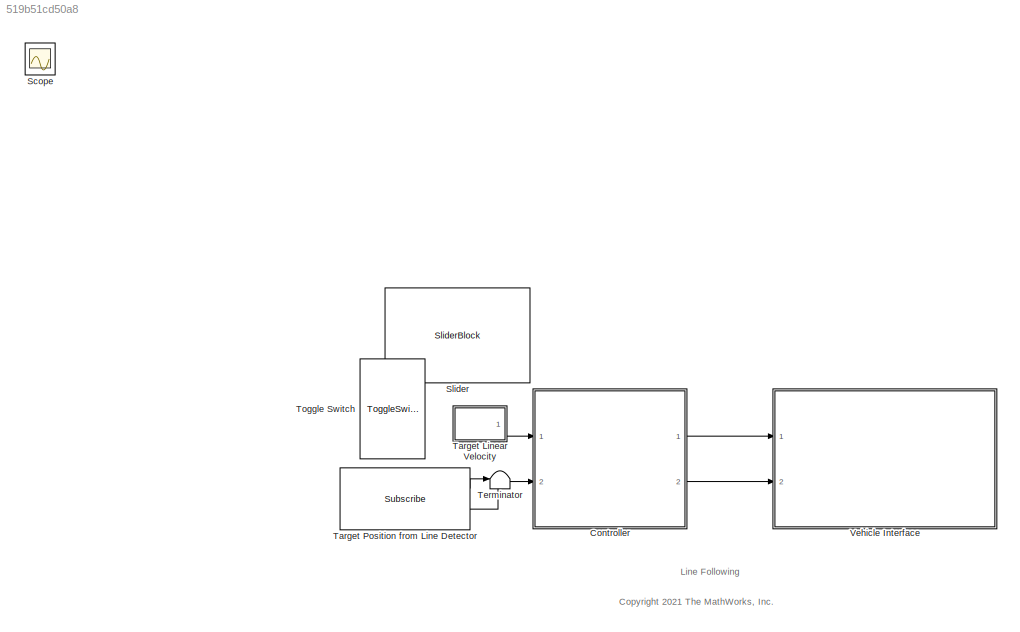
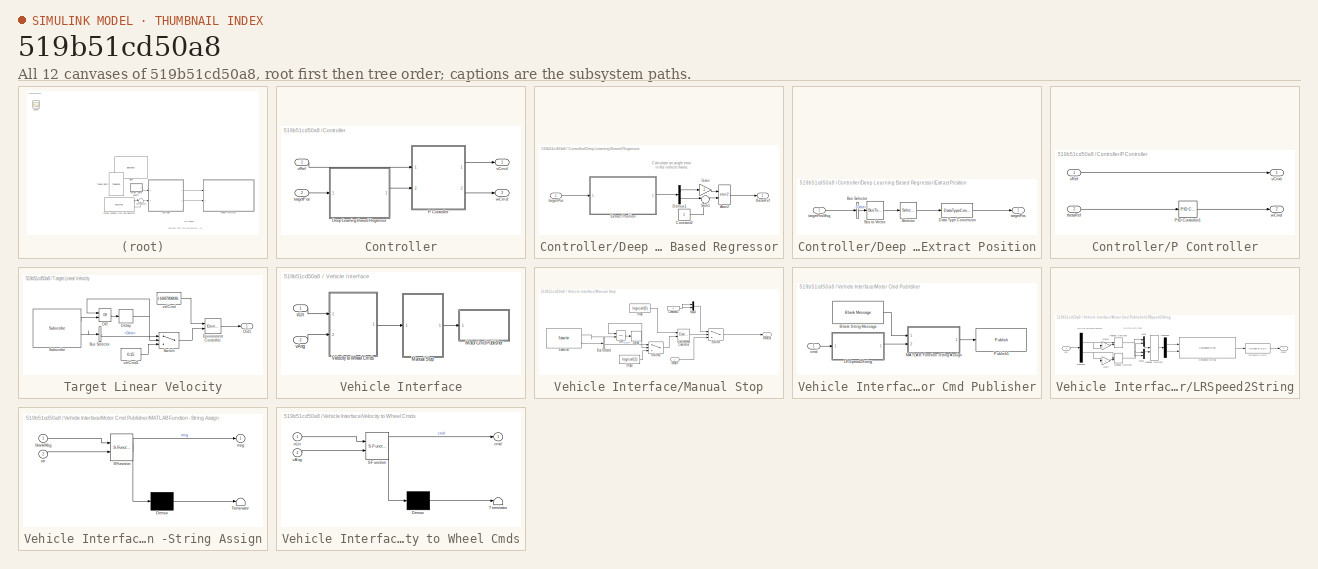
[diagram: thumbnail index - all 12 canvases of the model, root first then tree order]
MODEL slx_519b51cd50a8
KIND model
CONFIG AbsTol = auto
CONFIG EnableMultiTasking = off
CONFIG FixedStep = 0.05
CONFIG MaxStep = auto
CONFIG MinStep = auto
CONFIG RelTol = 1e-3
CONFIG SampleTimeConstraint = Unconstrained
CONFIG SolverName = FixedStepDiscrete
CONFIG StartTime = 0.0
CONFIG StopTime = inf
WORKSPACE source: mxarray member
WORKSPACE SL_ROS_VariableLengthArrays_MaxSizes: object (value not decoded)
BLOCK [SubSystem] Controller
  Ports = [2, 2]
  RequestExecContextInheritance = off
BLOCK [SubSystem] Controller/Deep Learning Based Regressor
  Ports = [1, 1]
  RequestExecContextInheritance = off
BLOCK [Trigonometry] Controller/Deep Learning Based Regressor/Atan2
  Operator = atan2
  Ports = [2, 1]
BLOCK [Constant] Controller/Deep Learning Based Regressor/Constant2
  OutDataTypeStr = single
BLOCK [Demux] Controller/Deep Learning Based Regressor/Demux1
  Outputs = 2
  Ports = [1, 2]
BLOCK [SubSystem] Controller/Deep Learning Based Regressor/Extract Position
  Ports = [1, 1]
  RequestExecContextInheritance = off
BLOCK [BusSelector] Controller/Deep Learning Based Regressor/Extract Position/Bus Selector
  OutputSignals = Data
  Ports = [1, 1]
BLOCK [BusToVector] Controller/Deep Learning Based Regressor/Extract Position/Bus to Vector
BLOCK [DataTypeConversion] Controller/Deep Learning Based Regressor/Extract Position/Data Type Conversion
  OutDataTypeStr = double
  RndMeth = Floor
  SaturateOnIntegerOverflow = off
BLOCK [Selector] Controller/Deep Learning Based Regressor/Extract Position/Selector
  IndexOptions = Index vector (dialog)
  Indices = 1:2
  InputPortWidth = 128
  OutputSizes = 1
  Ports = [1, 1]
BLOCK [Outport] Controller/Deep Learning Based Regressor/Extract Position/targetPos
BLOCK [Inport] Controller/Deep Learning Based Regressor/Extract Position/targetPosMsg
BLOCK [Gain] Controller/Deep Learning Based Regressor/Gain
  Gain = -1
BLOCK [Sum] Controller/Deep Learning Based Regressor/Sum1
  Inputs = |-+
  Ports = [2, 1]
BLOCK [Inport] Controller/Deep Learning Based Regressor/targetPos
BLOCK [Outport] Controller/Deep Learning Based Regressor/thetaRef
BLOCK [SubSystem] Controller/P Controller
  Ports = [2, 2]
  RequestExecContextInheritance = off
BLOCK [Reference] Controller/P Controller/PID Controller1  REF=pid_lib/PID Controller
  Ports = [1, 1]
  SourceBlock = pid_lib/PID Controller
  SourceProductBaseCode = SL
  SourceType = PID 1dof
BLOCK [Inport] Controller/P Controller/thetaRef
  Port = 2
BLOCK [Outport] Controller/P Controller/vCmd
BLOCK [Inport] Controller/P Controller/vRef
BLOCK [Outport] Controller/P Controller/wCmd
  Port = 2
BLOCK [Inport] Controller/targetPos
  Port = 2
BLOCK [Outport] Controller/vCmd
BLOCK [Inport] Controller/vRef
BLOCK [Outport] Controller/wCmd
  Port = 2
BLOCK [Scope] Scope
  Floating = off
  IOType = viewer
  NumInputPorts = 1
  Ports = []
  ScopeSpecificationString = Simulink.scopes.TimeScopeBlockCfg('CurrentConfiguration', extmgr.ConfigurationSet(extmgr.Configuration('Core','General UI',true),extmgr.Configuration('Core','Source UI',true),extmgr.Configuration('Sources','WiredSimulink',true),extmgr.Configuration('Visuals','Time Domain',true,'SerializedDisplays',{struct('MinYLimReal','-1.00000','MaxYLimReal','1.00000','YLabelReal','','MinYLimMag','0.00000','MaxY...<+1345ch>
BLOCK [SliderBlock] Slider
  ScaleMax = 1
BLOCK [SubSystem] Target Linear Velocity
  Ports = [0, 1]
  RequestExecContextInheritance = off
BLOCK [BusSelector] Target Linear Velocity/Bus Selector
  OutputSignals = Data
  Ports = [1, 1]
BLOCK [Delay] Target Linear Velocity/Delay
  DelayLength = 1
  InputPortMap = u0
  Ports = [1, 1]
BLOCK [Reference] Target Linear Velocity/Environment Controller  REF=simulink/Signal
Routing/Environment
Controller
  Ports = [2, 1]
  SourceBlock = simulink/Signal\nRouting/Environment\nController
  SourceProductBaseCode = SL
  SourceType = Environment Controller
BLOCK [Logic] Target Linear Velocity/OR
  AllPortsSameDT = off
  Operator = OR
  OutDataTypeStr = boolean
  Ports = [2, 1]
BLOCK [Outport] Target Linear Velocity/Out1
BLOCK [Reference] Target Linear Velocity/Subscribe  REF=robotlib/Subscribe
  Ports = [0, 2]
  SourceBlock = robotlib/Subscribe
  SourceProductBaseCode = RR
  SourceType = ROS Subscribe
BLOCK [Switch] Target Linear Velocity/Switch
  Criteria = u2 > Threshold
  InputSameDT = off
  SaturateOnIntegerOverflow = off
BLOCK [Constant] Target Linear Velocity/velCmd
  SampleTime = -1
  Value = 0.1687898089171974
BLOCK [Constant] Target Linear Velocity/velCmd1
  SampleTime = -1
  Value = 0.15
BLOCK [Reference] Target Position from Line Detector  REF=robotlib/Subscribe
  Ports = [0, 2]
  SourceBlock = robotlib/Subscribe
  SourceProductBaseCode = RR
  SourceType = ROS Subscribe
BLOCK [Terminator] Terminator
BLOCK [ToggleSwitchBlock] Toggle Switch
BLOCK [SubSystem] Vehicle Interface
  Ports = [2]
  RequestExecContextInheritance = off
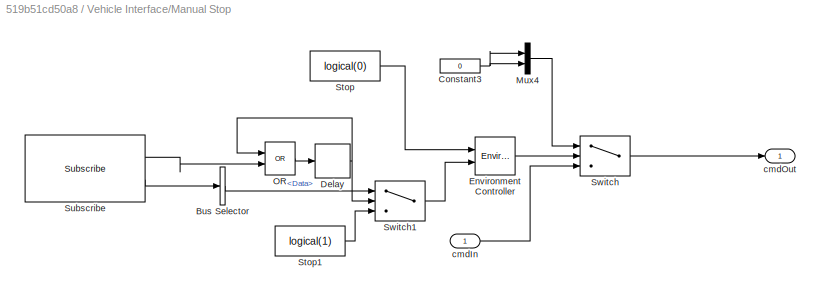
BLOCK [SubSystem] Vehicle Interface/Manual Stop
  Ports = [1, 1]
  RequestExecContextInheritance = off
BLOCK [BusSelector] Vehicle Interface/Manual Stop/Bus Selector
  OutputSignals = Data
  Ports = [1, 1]
BLOCK [Constant] Vehicle Interface/Manual Stop/Constant3
  NameLocation = top
  OutDataTypeStr = single
  SampleTime = -1
  Value = 0
BLOCK [Delay] Vehicle Interface/Manual Stop/Delay
  DelayLength = 1
  InputPortMap = u0
  Ports = [1, 1]
BLOCK [Reference] Vehicle Interface/Manual Stop/Environment Controller  REF=simulink/Signal
Routing/Environment
Controller
  Ports = [2, 1]
  SourceBlock = simulink/Signal\nRouting/Environment\nController
  SourceProductBaseCode = SL
  SourceType = Environment Controller
BLOCK [Mux] Vehicle Interface/Manual Stop/Mux4
  DisplayOption = bar
  Inputs = 2
  Ports = [2, 1]
BLOCK [Logic] Vehicle Interface/Manual Stop/OR
  AllPortsSameDT = off
  Operator = OR
  OutDataTypeStr = boolean
  Ports = [2, 1]
BLOCK [Constant] Vehicle Interface/Manual Stop/Stop
  SampleTime = -1
  Value = logical(0)
BLOCK [Constant] Vehicle Interface/Manual Stop/Stop1
  SampleTime = -1
  Value = logical(1)
BLOCK [Reference] Vehicle Interface/Manual Stop/Subscribe  REF=robotlib/Subscribe
  Ports = [0, 2]
  SourceBlock = robotlib/Subscribe
  SourceProductBaseCode = RR
  SourceType = ROS Subscribe
BLOCK [Switch] Vehicle Interface/Manual Stop/Switch
  Criteria = u2 > Threshold
  InputSameDT = off
  SaturateOnIntegerOverflow = off
BLOCK [Switch] Vehicle Interface/Manual Stop/Switch1
  Criteria = u2 > Threshold
  InputSameDT = off
  SaturateOnIntegerOverflow = off
BLOCK [Inport] Vehicle Interface/Manual Stop/cmdIn
BLOCK [Outport] Vehicle Interface/Manual Stop/cmdOut
BLOCK [SubSystem] Vehicle Interface/Motor Cmd Publisher
  Ports = [1]
  RequestExecContextInheritance = off
BLOCK [Reference] Vehicle Interface/Motor Cmd Publisher/Blank String Message  REF=robotlib/Blank Message
  Ports = [0, 1]
  SourceBlock = robotlib/Blank Message
  SourceProductBaseCode = RR
  SourceType = ROS Blank Message
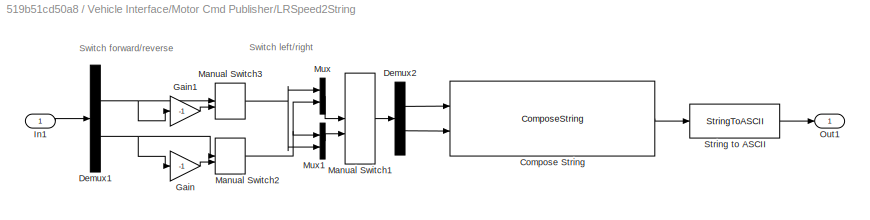
BLOCK [SubSystem] Vehicle Interface/Motor Cmd Publisher/LRSpeed2String
  Ports = [1, 1]
  RequestExecContextInheritance = off
BLOCK [ComposeString] Vehicle Interface/Motor Cmd Publisher/LRSpeed2String/Compose String
  Format = "speed[ %+1.4f,%+1.4f ]"
  Ports = [2, 1]
BLOCK [Demux] Vehicle Interface/Motor Cmd Publisher/LRSpeed2String/Demux1
  Outputs = 2
  Ports = [1, 2]
BLOCK [Demux] Vehicle Interface/Motor Cmd Publisher/LRSpeed2String/Demux2
  Outputs = 2
  Ports = [1, 2]
BLOCK [Gain] Vehicle Interface/Motor Cmd Publisher/LRSpeed2String/Gain
  Gain = -1
BLOCK [Gain] Vehicle Interface/Motor Cmd Publisher/LRSpeed2String/Gain1
  Gain = -1
BLOCK [Inport] Vehicle Interface/Motor Cmd Publisher/LRSpeed2String/In1
BLOCK [ManualSwitch] Vehicle Interface/Motor Cmd Publisher/LRSpeed2String/Manual Switch1
BLOCK [ManualSwitch] Vehicle Interface/Motor Cmd Publisher/LRSpeed2String/Manual Switch2
BLOCK [ManualSwitch] Vehicle Interface/Motor Cmd Publisher/LRSpeed2String/Manual Switch3
BLOCK [Mux] Vehicle Interface/Motor Cmd Publisher/LRSpeed2String/Mux
  DisplayOption = bar
  Inputs = 2
  Ports = [2, 1]
BLOCK [Mux] Vehicle Interface/Motor Cmd Publisher/LRSpeed2String/Mux1
  DisplayOption = bar
  Inputs = 2
  Ports = [2, 1]
BLOCK [Outport] Vehicle Interface/Motor Cmd Publisher/LRSpeed2String/Out1
  VectorParamsAs1DForOutWhenUnconnected = off
BLOCK [StringToASCII] Vehicle Interface/Motor Cmd Publisher/LRSpeed2String/String to ASCII
BLOCK [SubSystem] Vehicle Interface/Motor Cmd Publisher/MATLAB Function -String Assign
  ErrorFcn = Stateflow.Translate.translate
  PermitHierarchicalResolution = ExplicitOnly
  Ports = [2, 1]
  RequestExecContextInheritance = off
  SFBlockType = MATLAB Function
  TreatAsAtomicUnit = on
BLOCK [Demux] Vehicle Interface/Motor Cmd Publisher/MATLAB Function -String Assign/ Demux 
  Outputs = 1
  Ports = [1, 1]
BLOCK [S-Function] Vehicle Interface/Motor Cmd Publisher/MATLAB Function -String Assign/ SFunction 
  EnableBusSupport = on
  FunctionName = sf_sfun
  PortCounts = [2 2]
  Ports = [2, 2]
  SFcnIsStateOwnerBlock = off
  SFunctionDeploymentMode = off
  Tag = Stateflow S-Function 2
BLOCK [Terminator] Vehicle Interface/Motor Cmd Publisher/MATLAB Function -String Assign/ Terminator 
BLOCK [Inport] Vehicle Interface/Motor Cmd Publisher/MATLAB Function -String Assign/blankMsg
BLOCK [Outport] Vehicle Interface/Motor Cmd Publisher/MATLAB Function -String Assign/msg
  VectorParamsAs1DForOutWhenUnconnected = off
BLOCK [Inport] Vehicle Interface/Motor Cmd Publisher/MATLAB Function -String Assign/str
  Port = 2
BLOCK [Reference] Vehicle Interface/Motor Cmd Publisher/Publish1  REF=robotlib/Publish
  Ports = [1]
  SourceBlock = robotlib/Publish
  SourceProductBaseCode = RR
  SourceType = ROS Publish
BLOCK [Inport] Vehicle Interface/Motor Cmd Publisher/cmd
BLOCK [SubSystem] Vehicle Interface/Velocity to Wheel Cmds
  ErrorFcn = Stateflow.Translate.translate
  PermitHierarchicalResolution = ExplicitOnly
  Ports = [2, 1]
  RequestExecContextInheritance = off
  SFBlockType = MATLAB Function
  TreatAsAtomicUnit = on
BLOCK [Demux] Vehicle Interface/Velocity to Wheel Cmds/ Demux 
  Outputs = 1
  Ports = [1, 1]
BLOCK [S-Function] Vehicle Interface/Velocity to Wheel Cmds/ SFunction 
  EnableBusSupport = on
  FunctionName = sf_sfun
  PortCounts = [2 2]
  Ports = [2, 2]
  SFcnIsStateOwnerBlock = off
  SFunctionDeploymentMode = off
  Tag = Stateflow S-Function 1
BLOCK [Terminator] Vehicle Interface/Velocity to Wheel Cmds/ Terminator 
BLOCK [Outport] Vehicle Interface/Velocity to Wheel Cmds/cmd
BLOCK [Inport] Vehicle Interface/Velocity to Wheel Cmds/vAng
  Port = 2
BLOCK [Inport] Vehicle Interface/Velocity to Wheel Cmds/vLin
BLOCK [Inport] Vehicle Interface/vAng
  Port = 2
BLOCK [Inport] Vehicle Interface/vLin
ANNOTATION (root): Line Following
ANNOTATION (root): <copyright redacted>
ANNOTATION Controller/Deep Learning Based Regressor: Calculate an angle error in the vehicle frame.
ANNOTATION Vehicle Interface/Motor Cmd Publisher/LRSpeed2String: Switch forward/reverse
ANNOTATION Vehicle Interface/Motor Cmd Publisher/LRSpeed2String: Switch left/right
LINE Controller/Deep Learning Based Regressor/Atan2:1 -> Controller/Deep Learning Based Regressor/thetaRef:1
LINE Controller/Deep Learning Based Regressor/Constant2:1 -> Controller/Deep Learning Based Regressor/Sum1:2
LINE Controller/Deep Learning Based Regressor/Demux1:1 -> Controller/Deep Learning Based Regressor/Gain:1
LINE Controller/Deep Learning Based Regressor/Demux1:2 -> Controller/Deep Learning Based Regressor/Sum1:1
LINE Controller/Deep Learning Based Regressor/Extract Position/Bus Selector:1 -> Controller/Deep Learning Based Regressor/Extract Position/Bus to Vector:1
LINE Controller/Deep Learning Based Regressor/Extract Position/Bus to Vector:1 -> Controller/Deep Learning Based Regressor/Extract Position/Selector:1
LINE Controller/Deep Learning Based Regressor/Extract Position/Data Type Conversion:1 -> Controller/Deep Learning Based Regressor/Extract Position/targetPos:1
LINE Controller/Deep Learning Based Regressor/Extract Position/Selector:1 -> Controller/Deep Learning Based Regressor/Extract Position/Data Type Conversion:1
LINE Controller/Deep Learning Based Regressor/Extract Position/targetPosMsg:1 -> Controller/Deep Learning Based Regressor/Extract Position/Bus Selector:1
LINE Controller/Deep Learning Based Regressor/Extract Position:1 -> Controller/Deep Learning Based Regressor/Demux1:1
LINE Controller/Deep Learning Based Regressor/Gain:1 -> Controller/Deep Learning Based Regressor/Atan2:1
LINE Controller/Deep Learning Based Regressor/Sum1:1 -> Controller/Deep Learning Based Regressor/Atan2:2
LINE Controller/Deep Learning Based Regressor/targetPos:1 -> Controller/Deep Learning Based Regressor/Extract Position:1
LINE Controller/Deep Learning Based Regressor:1 -> Controller/P Controller:2
LINE Controller/P Controller/PID Controller1:1 -> Controller/P Controller/wCmd:1
LINE Controller/P Controller/thetaRef:1 -> Controller/P Controller/PID Controller1:1
LINE Controller/P Controller/vRef:1 -> Controller/P Controller/vCmd:1
LINE Controller/P Controller:1 -> Controller/vCmd:1
LINE Controller/P Controller:2 -> Controller/wCmd:1
LINE Controller/targetPos:1 -> Controller/Deep Learning Based Regressor:1
LINE Controller/vRef:1 -> Controller/P Controller:1
LINE Controller:1 -> Vehicle Interface:1
LINE Controller:2 -> Vehicle Interface:2
LINE Target Linear Velocity/Bus Selector:1 -> Target Linear Velocity/Switch:1
NET Target Linear Velocity/Delay:1 -> Target Linear Velocity/OR:1, Target Linear Velocity/Switch:2
LINE Target Linear Velocity/Environment Controller:1 -> Target Linear Velocity/Out1:1
LINE Target Linear Velocity/OR:1 -> Target Linear Velocity/Delay:1
LINE Target Linear Velocity/Subscribe:1 -> Target Linear Velocity/OR:2
LINE Target Linear Velocity/Subscribe:2 -> Target Linear Velocity/Bus Selector:1
LINE Target Linear Velocity/Switch:1 -> Target Linear Velocity/Environment Controller:2
LINE Target Linear Velocity/velCmd1:1 -> Target Linear Velocity/Switch:3
LINE Target Linear Velocity/velCmd:1 -> Target Linear Velocity/Environment Controller:1
LINE Target Linear Velocity:1 -> Controller:1
LINE Target Position from Line Detector:1 -> Terminator:1
LINE Target Position from Line Detector:2 -> Controller:2
LINE Vehicle Interface/Manual Stop/Bus Selector:1 -> Vehicle Interface/Manual Stop/Switch1:1
NET Vehicle Interface/Manual Stop/Constant3:1 -> Vehicle Interface/Manual Stop/Mux4:1, Vehicle Interface/Manual Stop/Mux4:2
NET Vehicle Interface/Manual Stop/Delay:1 -> Vehicle Interface/Manual Stop/OR:1, Vehicle Interface/Manual Stop/Switch1:2
LINE Vehicle Interface/Manual Stop/Environment Controller:1 -> Vehicle Interface/Manual Stop/Switch:2
LINE Vehicle Interface/Manual Stop/Mux4:1 -> Vehicle Interface/Manual Stop/Switch:1
LINE Vehicle Interface/Manual Stop/OR:1 -> Vehicle Interface/Manual Stop/Delay:1
LINE Vehicle Interface/Manual Stop/Stop1:1 -> Vehicle Interface/Manual Stop/Switch1:3
LINE Vehicle Interface/Manual Stop/Stop:1 -> Vehicle Interface/Manual Stop/Environment Controller:1
LINE Vehicle Interface/Manual Stop/Subscribe:1 -> Vehicle Interface/Manual Stop/OR:2
LINE Vehicle Interface/Manual Stop/Subscribe:2 -> Vehicle Interface/Manual Stop/Bus Selector:1
LINE Vehicle Interface/Manual Stop/Switch1:1 -> Vehicle Interface/Manual Stop/Environment Controller:2
LINE Vehicle Interface/Manual Stop/Switch:1 -> Vehicle Interface/Manual Stop/cmdOut:1
LINE Vehicle Interface/Manual Stop/cmdIn:1 -> Vehicle Interface/Manual Stop/Switch:3
LINE Vehicle Interface/Manual Stop:1 -> Vehicle Interface/Motor Cmd Publisher:1
LINE Vehicle Interface/Motor Cmd Publisher/Blank String Message:1 -> Vehicle Interface/Motor Cmd Publisher/MATLAB Function -String Assign:1
LINE Vehicle Interface/Motor Cmd Publisher/LRSpeed2String/Compose String:1 -> Vehicle Interface/Motor Cmd Publisher/LRSpeed2String/String to ASCII:1
NET Vehicle Interface/Motor Cmd Publisher/LRSpeed2String/Demux1:1 -> Vehicle Interface/Motor Cmd Publisher/LRSpeed2String/Gain1:1, Vehicle Interface/Motor Cmd Publisher/LRSpeed2String/Manual Switch3:1
NET Vehicle Interface/Motor Cmd Publisher/LRSpeed2String/Demux1:2 -> Vehicle Interface/Motor Cmd Publisher/LRSpeed2String/Gain:1, Vehicle Interface/Motor Cmd Publisher/LRSpeed2String/Manual Switch2:1
LINE Vehicle Interface/Motor Cmd Publisher/LRSpeed2String/Demux2:1 -> Vehicle Interface/Motor Cmd Publisher/LRSpeed2String/Compose String:1
LINE Vehicle Interface/Motor Cmd Publisher/LRSpeed2String/Demux2:2 -> Vehicle Interface/Motor Cmd Publisher/LRSpeed2String/Compose String:2
LINE Vehicle Interface/Motor Cmd Publisher/LRSpeed2String/Gain1:1 -> Vehicle Interface/Motor Cmd Publisher/LRSpeed2String/Manual Switch3:2
LINE Vehicle Interface/Motor Cmd Publisher/LRSpeed2String/Gain:1 -> Vehicle Interface/Motor Cmd Publisher/LRSpeed2String/Manual Switch2:2
LINE Vehicle Interface/Motor Cmd Publisher/LRSpeed2String/In1:1 -> Vehicle Interface/Motor Cmd Publisher/LRSpeed2String/Demux1:1
LINE Vehicle Interface/Motor Cmd Publisher/LRSpeed2String/Manual Switch1:1 -> Vehicle Interface/Motor Cmd Publisher/LRSpeed2String/Demux2:1
NET Vehicle Interface/Motor Cmd Publisher/LRSpeed2String/Manual Switch2:1 -> Vehicle Interface/Motor Cmd Publisher/LRSpeed2String/Mux1:1, Vehicle Interface/Motor Cmd Publisher/LRSpeed2String/Mux:2
NET Vehicle Interface/Motor Cmd Publisher/LRSpeed2String/Manual Switch3:1 -> Vehicle Interface/Motor Cmd Publisher/LRSpeed2String/Mux1:2, Vehicle Interface/Motor Cmd Publisher/LRSpeed2String/Mux:1
LINE Vehicle Interface/Motor Cmd Publisher/LRSpeed2String/Mux1:1 -> Vehicle Interface/Motor Cmd Publisher/LRSpeed2String/Manual Switch1:2
LINE Vehicle Interface/Motor Cmd Publisher/LRSpeed2String/Mux:1 -> Vehicle Interface/Motor Cmd Publisher/LRSpeed2String/Manual Switch1:1
LINE Vehicle Interface/Motor Cmd Publisher/LRSpeed2String/String to ASCII:1 -> Vehicle Interface/Motor Cmd Publisher/LRSpeed2String/Out1:1
LINE Vehicle Interface/Motor Cmd Publisher/LRSpeed2String:1 -> Vehicle Interface/Motor Cmd Publisher/MATLAB Function -String Assign:2
LINE Vehicle Interface/Motor Cmd Publisher/MATLAB Function -String Assign:1 -> Vehicle Interface/Motor Cmd Publisher/Publish1:1
LINE Vehicle Interface/Motor Cmd Publisher/cmd:1 -> Vehicle Interface/Motor Cmd Publisher/LRSpeed2String:1
LINE Vehicle Interface/Velocity to Wheel Cmds:1 -> Vehicle Interface/Manual Stop:1
LINE Vehicle Interface/vAng:1 -> Vehicle Interface/Velocity to Wheel Cmds:2
LINE Vehicle Interface/vLin:1 -> Vehicle Interface/Velocity to Wheel Cmds:1
note: NET lines group one-source signal fan-out (src -> all destinations, sorted); 1:1 wires keep LINE
CHART Vehicle Interface/Velocity to Wheel Cmds states=1 transitions=1
  STATE_LABEL 'eML_blk_kernel()'
  STATE_LABEL 'SCRIPT:\nfunction cmd = vel2wheel(vLin,vAng)\n%#codegen\nd = 0.05125*2;\nr = 0.03;\n\nif abs(vAng) > 2\n    vl = -d*vAng/2;\n    vr =  d*vAng/2;\nelse\n    vl = vLin - d*vAng/2;\n    vr = vLin + d*vAng/2;\nend\nwl = vl / r;\nwr = vr / r;\nwlCmd = funcl(wl);\nwrCmd = funcr(wr);\ncmd = [wlCmd,wrCmd];\n\n    function wCmd = funcl(w)\n        wCmd = min(max(w*0.1,-1),1);\n    end\n    function wCmd = funcr(w)\n        wCmd ...<+37ch>'
CHART Vehicle Interface/Motor Cmd Publisher/MATLAB Function -String Assign states=1 transitions=1
  STATE_LABEL 'eML_blk_kernel()'
  STATE_LABEL "SCRIPT:\nfunction msg = assignStringInput(blankMsg, str)\n% assignStringInput - Assign a string in a ROS message to specified input string\n%\n% MSG = assignStringInput(blankMsg, STR) assigns the input string, STR, to\n%  a string field in the ROS message, blankMsg, and outputs the updated\n%  ROS message.\n%\n%  Inputs\n%    blankMsg: A bus for a 'std_msgs/String' message. This is \n%        used to initia...<+1099ch>"
CHART  states=0 transitions=0
CHART  states=0 transitions=0
